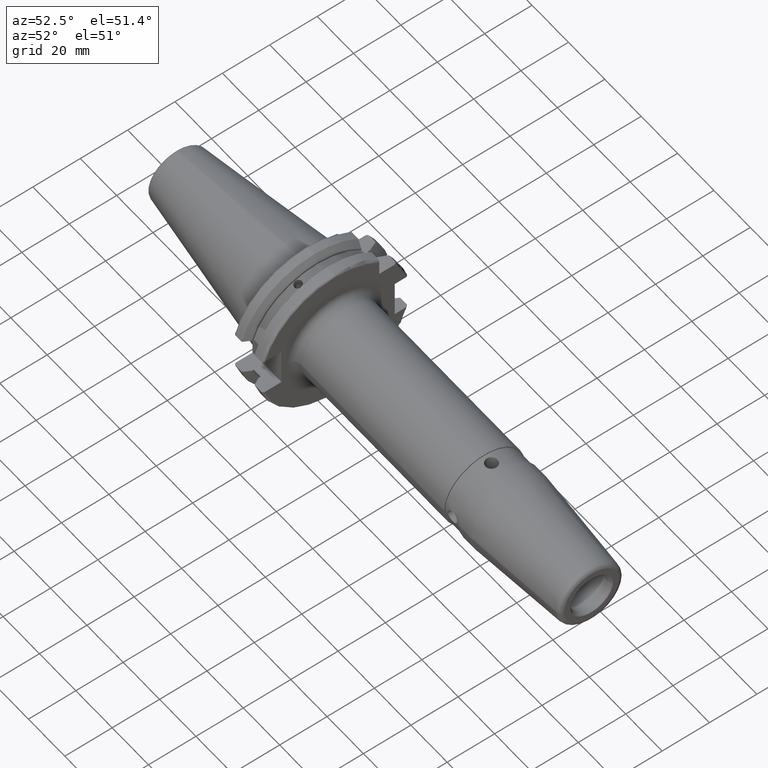
[diagram: clean part render]
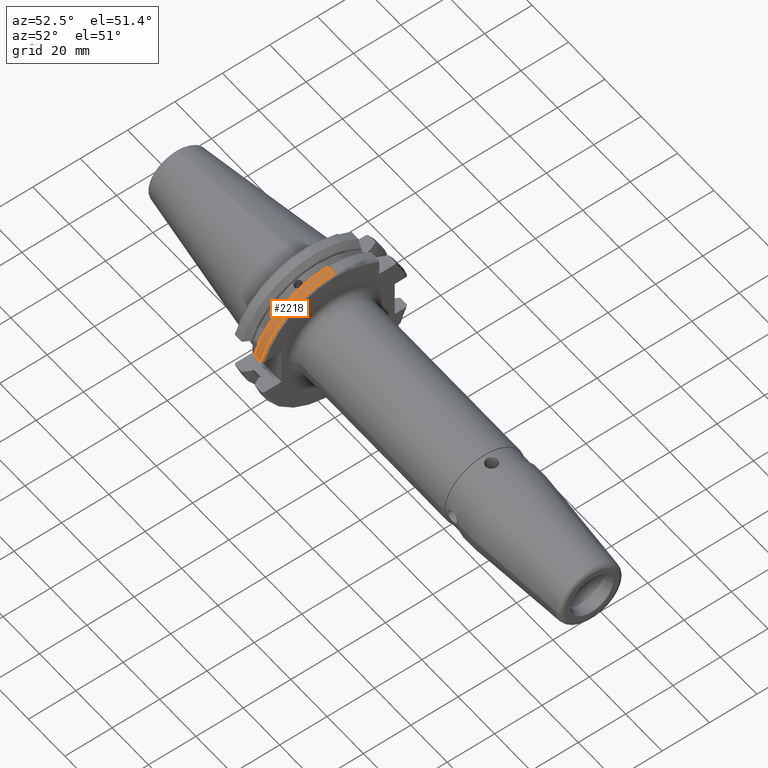
[diagram: same view with one face highlighted and labeled with its STEP entity id]
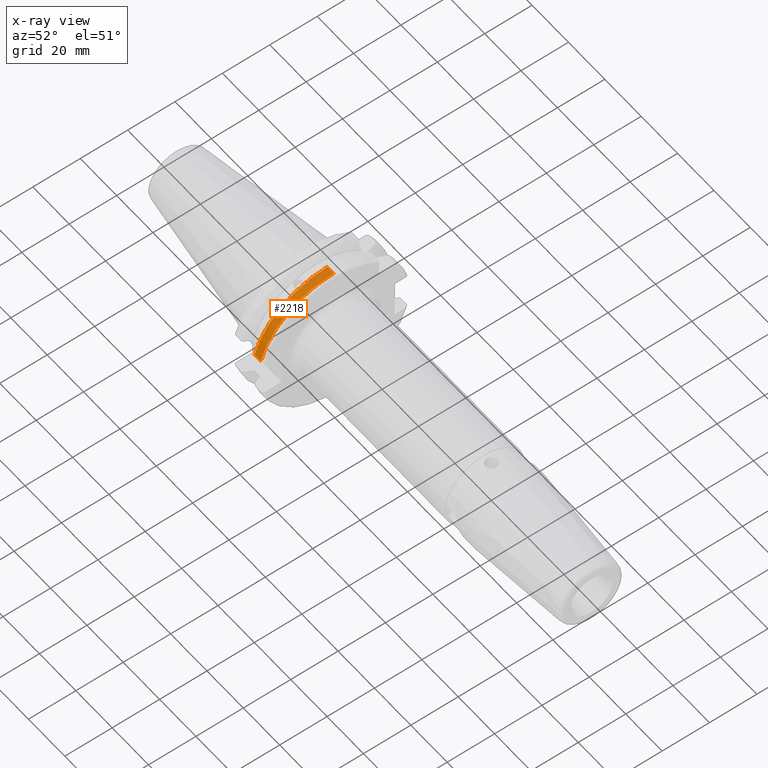
[diagram: x-ray of the same camera — body ghosted, the highlighted face saturated]
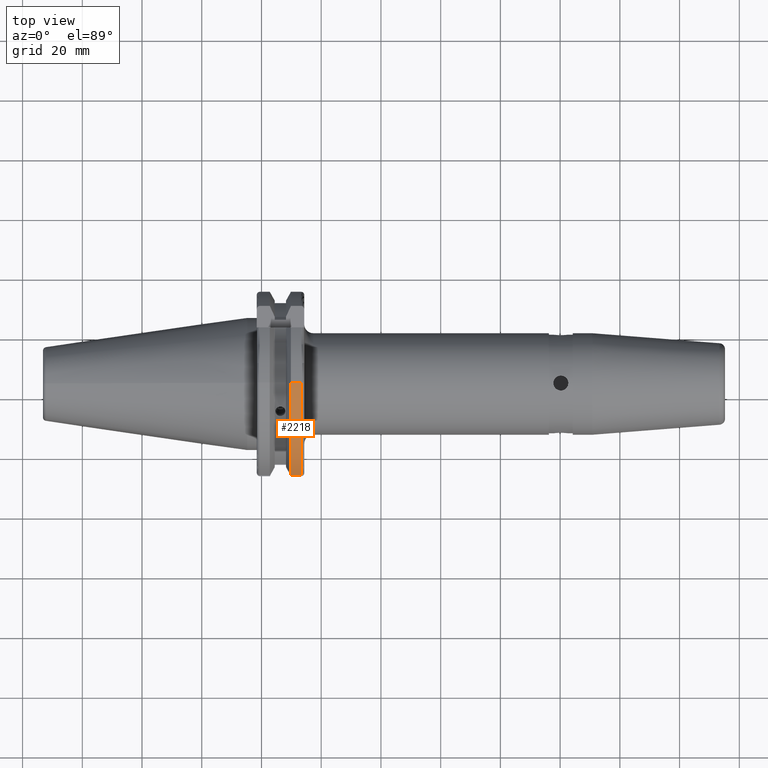
[diagram: same view with one face highlighted and labeled with its STEP entity id]
A machine part, auxiliary view. The second image highlights one B-rep face of the part: STEP entity #2218.
The next image is the same camera in x-ray: the body ghosted, the highlighted face saturated — about 0% of this face is hidden behind the body in this view.
A second angle (top view) of the same face is appended — the face is thin or edge-on in the first view.
In plain terms, the highlighted cylindrical surface (partial cylindrical patch) has radius 31.775 mm, axis along (-1, -0, 0).
Its self-contained STEP definition (entity closure, byte-faithful):
#70 = CARTESIAN_POINT ( 'NONE',  ( -57.70000000000001705, -1.387778780781445676E-14, -7.489693497978174534E-17 ) ) ;
#280 = CARTESIAN_POINT ( 'NONE',  ( -57.70000000000001705, -8.050000000000006040, -30.73838195156016440 ) ) ;
#284 = VERTEX_POINT ( 'NONE', #6998 ) ;
#351 = DIRECTION ( 'NONE',  ( -1.000000000000000000, -1.806543779445901364E-16, 0.0000000000000000000 ) ) ;
#435 = DIRECTION ( 'NONE',  ( -1.000000000000000000, -1.806543779445901364E-16, 0.0000000000000000000 ) ) ;
#482 = VECTOR ( 'NONE', #2169, 1000.000000000000000 ) ;
#611 = AXIS2_PLACEMENT_3D ( 'NONE', #5605, #2867, #5691 ) ;
#616 = DIRECTION ( 'NONE',  ( -1.000000000000000000, -1.806543779445901364E-16, 0.0000000000000000000 ) ) ;
#687 = CARTESIAN_POINT ( 'NONE',  ( 14.63627039878647196, -8.049999999999993605, -30.73838195156016440 ) ) ;
#690 = LINE ( 'NONE', #280, #6116 ) ;
#768 = EDGE_CURVE ( 'NONE', #284, #2698, #3930, .T. ) ;
#913 = EDGE_CURVE ( 'NONE', #284, #2509, #690, .T. ) ;
#1816 = ORIENTED_EDGE ( 'NONE', *, *, #5412, .F. ) ;
#2169 = DIRECTION ( 'NONE',  ( -1.000000000000000000, -1.806543779445901364E-16, 0.0000000000000000000 ) ) ;
#2218 = ADVANCED_FACE ( 'NONE', ( #4159 ), #4656, .T. ) ;
#2294 = ORIENTED_EDGE ( 'NONE', *, *, #913, .F. ) ;
#2475 = CARTESIAN_POINT ( 'NONE',  ( 18.10000000000000142, -31.77499999999999147, -7.489693497978174534E-17 ) ) ;
#2509 = VERTEX_POINT ( 'NONE', #687 ) ;
#2698 = VERTEX_POINT ( 'NONE', #2475 ) ;
#2735 = CARTESIAN_POINT ( 'NONE',  ( -57.70000000000000995, -31.77500000000000568, -7.489693497978174534E-17 ) ) ;
#2867 = DIRECTION ( 'NONE',  ( -1.000000000000000000, -1.806543779445901364E-16, 0.0000000000000000000 ) ) ;
#2923 = EDGE_CURVE ( 'NONE', #2698, #6307, #3398, .T. ) ;
#3341 = DIRECTION ( 'NONE',  ( 2.183758899734769542E-16, -1.000000000000000000, 0.0000000000000000000 ) ) ;
#3398 = LINE ( 'NONE', #2735, #482 ) ;
#3615 = CARTESIAN_POINT ( 'NONE',  ( 14.63627039878645775, -8.673617379884035472E-16, -7.489693497978174534E-17 ) ) ;
#3824 = EDGE_LOOP ( 'NONE', ( #4437, #4564, #1816, #2294 ) ) ;
#3930 = CIRCLE ( 'NONE', #611, 31.77499999999999147 ) ;
#4155 = DIRECTION ( 'NONE',  ( 1.637819174801077095E-16, -1.000000000000000000, 0.0000000000000000000 ) ) ;
#4159 = FACE_OUTER_BOUND ( 'NONE', #3824, .T. ) ;
#4382 = CIRCLE ( 'NONE', #5147, 31.77499999999999147 ) ;
#4437 = ORIENTED_EDGE ( 'NONE', *, *, #768, .T. ) ;
#4564 = ORIENTED_EDGE ( 'NONE', *, *, #2923, .T. ) ;
#4656 = CYLINDRICAL_SURFACE ( 'NONE', #5176, 31.77499999999999147 ) ;
#5147 = AXIS2_PLACEMENT_3D ( 'NONE', #3615, #351, #4155 ) ;
#5176 = AXIS2_PLACEMENT_3D ( 'NONE', #70, #616, #3341 ) ;
#5412 = EDGE_CURVE ( 'NONE', #2509, #6307, #4382, .T. ) ;
#5605 = CARTESIAN_POINT ( 'NONE',  ( 18.09999999999999432, 0.0000000000000000000, -7.489693497978174534E-17 ) ) ;
#5691 = DIRECTION ( 'NONE',  ( 2.183758899734769542E-16, -1.000000000000000000, 0.0000000000000000000 ) ) ;
#5981 = CARTESIAN_POINT ( 'NONE',  ( 14.63627039878646308, -31.77499999999999147, -7.489693497978174534E-17 ) ) ;
#6116 = VECTOR ( 'NONE', #435, 1000.000000000000000 ) ;
#6307 = VERTEX_POINT ( 'NONE', #5981 ) ;
#6998 = CARTESIAN_POINT ( 'NONE',  ( 18.09999999999999787, -8.050000000000006040, -30.73838195156016084 ) ) ;